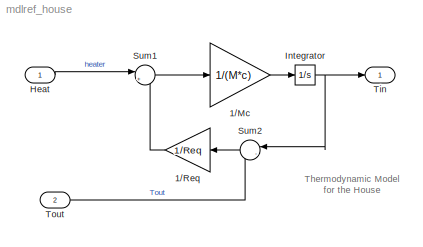
MODEL mdlref_house
KIND model
BLOCK [Gain] 1//Mc
  Gain = 1/(M*c)
BLOCK [Gain] 1//Req
  Gain = 1/Req
BLOCK [Inport] Heat
  DataType = double
  IconDisplay = Port number
  LatchInput = off
  Port = 1
  PortDimensions = 1
  SampleTime = 0
  SamplingMode = Sample based
  SignalType = real
BLOCK [Integrator] Integrator
  InitialCondition = TinIC
  Ports = [1, 1]
BLOCK [Sum] Sum1
  IconShape = round
  Inputs = |++
  Ports = [2, 1]
BLOCK [Sum] Sum2
  IconShape = round
  Inputs = |-+
  Ports = [2, 1]
BLOCK [Outport] Tin
  BusOutputAsStruct = off
  IconDisplay = Port number
  InitialOutput = 0
BLOCK [Inport] Tout
  DataType = double
  IconDisplay = Port number
  LatchInput = off
  Port = 2
  PortDimensions = 1
  SampleTime = 0
  SamplingMode = Sample based
  SignalType = real
ANNOTATION (root): Thermodynamic Model\nfor the House
LINE 1//Mc:1 -> Integrator:1
LINE 1//Req:1 -> Sum1:2
LINE Heat:1 -> Sum1:1
NET Integrator:1 -> Sum2:1, Tin:1
LINE Sum1:1 -> 1//Mc:1
LINE Sum2:1 -> 1//Req:1
LINE Tout:1 -> Sum2:2
note: NET lines group one-source signal fan-out (src -> all destinations, sorted); 1:1 wires keep LINE
